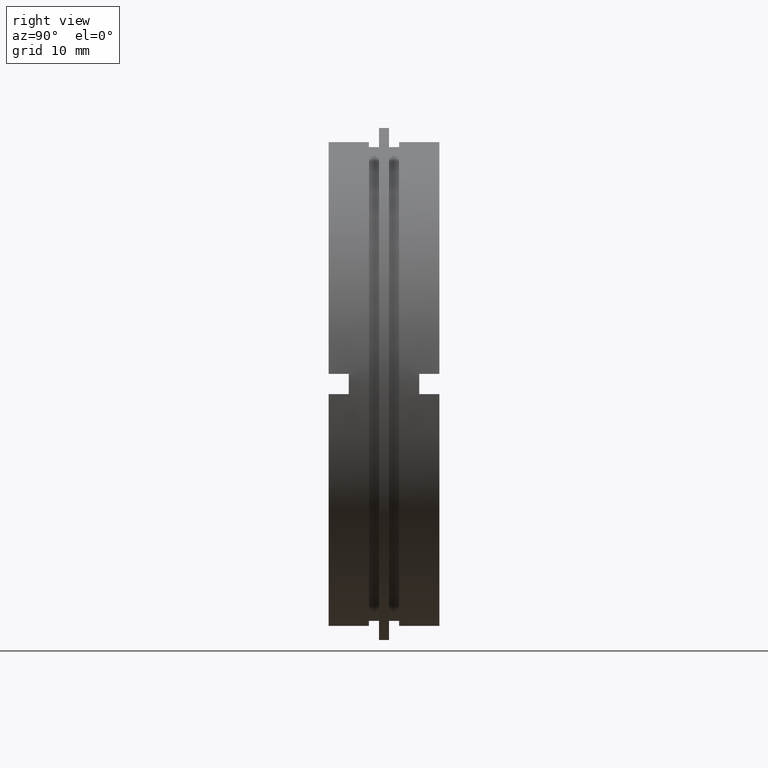
[diagram: clean part render]
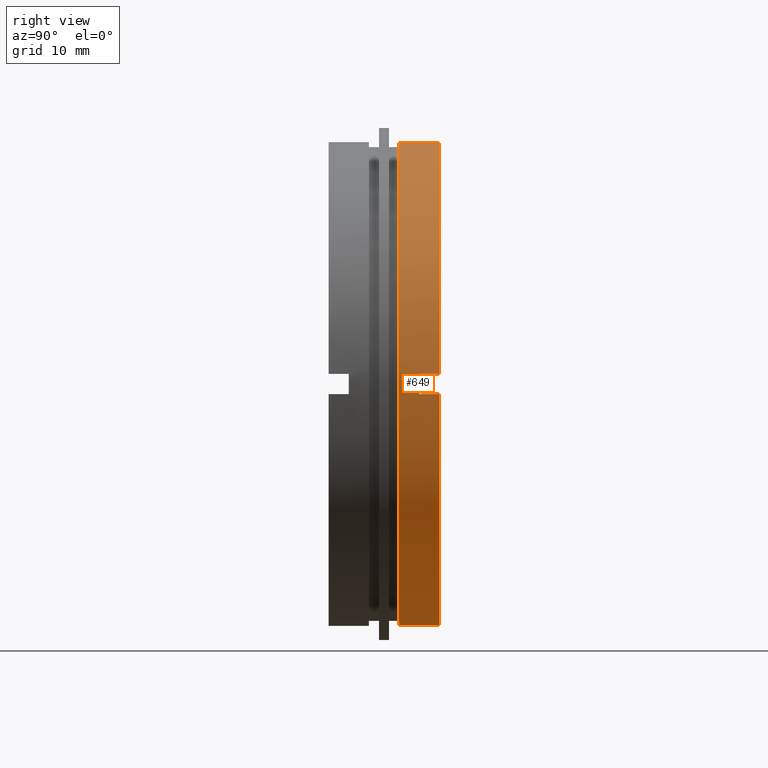
[diagram: same view with one face highlighted and labeled with its STEP entity id]
A machine part, right view. The second image highlights one B-rep face of the part: STEP entity #649.
In plain terms, the highlighted cylindrical surface (partial cylindrical patch) has radius 24 mm, axis along (-0, 1, -0).
Its self-contained STEP definition (entity closure, byte-faithful):
#2 = DIRECTION ( 'NONE',  ( 0.0000000000000000000, 0.0000000000000000000, 1.000000000000000000 ) ) ;
#14 = CIRCLE ( 'NONE', #585, 24.00000000000000000 ) ;
#27 = DIRECTION ( 'NONE',  ( 0.0000000000000000000, 0.0000000000000000000, 1.000000000000000000 ) ) ;
#39 = CARTESIAN_POINT ( 'NONE',  ( 23.97915761656359700, 9.000000000000000000, -0.9999999999999974500 ) ) ;
#67 = ORIENTED_EDGE ( 'NONE', *, *, #93, .F. ) ;
#84 = CARTESIAN_POINT ( 'NONE',  ( 0.0000000000000000000, 9.000000000000000000, 0.0000000000000000000 ) ) ;
#86 = CARTESIAN_POINT ( 'NONE',  ( 0.0000000000000000000, 11.00000000000000000, 24.00000000000000000 ) ) ;
#88 = EDGE_CURVE ( 'NONE', #1109, #1034, #431, .T. ) ;
#93 = EDGE_CURVE ( 'NONE', #647, #306, #1138, .T. ) ;
#94 = CARTESIAN_POINT ( 'NONE',  ( 2.939152317953647900E-015, 11.00000000000000000, -24.00000000000000000 ) ) ;
#107 = AXIS2_PLACEMENT_3D ( 'NONE', #1062, #530, #2 ) ;
#117 = DIRECTION ( 'NONE',  ( -0.0000000000000000000, 1.000000000000000000, -0.0000000000000000000 ) ) ;
#130 = CARTESIAN_POINT ( 'NONE',  ( 0.0000000000000000000, 22.67749945107591400, 24.00000000000000000 ) ) ;
#149 = AXIS2_PLACEMENT_3D ( 'NONE', #378, #1088, #27 ) ;
#196 = VECTOR ( 'NONE', #388, 1000.000000000000000 ) ;
#207 = VECTOR ( 'NONE', #849, 1000.000000000000000 ) ;
#208 = DIRECTION ( 'NONE',  ( -0.0000000000000000000, 1.000000000000000000, -0.0000000000000000000 ) ) ;
#216 = CARTESIAN_POINT ( 'NONE',  ( 2.939152317953647900E-015, 22.67749945107591400, -24.00000000000000000 ) ) ;
#229 = ORIENTED_EDGE ( 'NONE', *, *, #1120, .F. ) ;
#231 = CARTESIAN_POINT ( 'NONE',  ( 2.939152317953647900E-015, 6.999999999999999100, -24.00000000000000000 ) ) ;
#250 = ORIENTED_EDGE ( 'NONE', *, *, #708, .F. ) ;
#263 = DIRECTION ( 'NONE',  ( 0.0000000000000000000, 1.000000000000000000, 0.0000000000000000000 ) ) ;
#277 = FACE_OUTER_BOUND ( 'NONE', #784, .T. ) ;
#306 = VERTEX_POINT ( 'NONE', #86 ) ;
#323 = DIRECTION ( 'NONE',  ( 0.0000000000000000000, 0.0000000000000000000, 1.000000000000000000 ) ) ;
#338 = EDGE_CURVE ( 'NONE', #306, #501, #611, .T. ) ;
#342 = ORIENTED_EDGE ( 'NONE', *, *, #464, .T. ) ;
#378 = CARTESIAN_POINT ( 'NONE',  ( 0.0000000000000000000, 11.00000000000000000, 0.0000000000000000000 ) ) ;
#387 = CARTESIAN_POINT ( 'NONE',  ( 0.0000000000000000000, 6.999999999999999100, 24.00000000000000000 ) ) ;
#388 = DIRECTION ( 'NONE',  ( -0.0000000000000000000, 1.000000000000000000, -0.0000000000000000000 ) ) ;
#424 = ORIENTED_EDGE ( 'NONE', *, *, #88, .T. ) ;
#431 = LINE ( 'NONE', #216, #196 ) ;
#435 = CARTESIAN_POINT ( 'NONE',  ( 23.97915761656359700, 9.000000000000000000, 1.000000000000001100 ) ) ;
#464 = EDGE_CURVE ( 'NONE', #647, #1109, #950, .T. ) ;
#470 = LINE ( 'NONE', #475, #207 ) ;
#475 = CARTESIAN_POINT ( 'NONE',  ( 23.97915761656359700, 22.67749945107591400, -1.000000000000000000 ) ) ;
#501 = VERTEX_POINT ( 'NONE', #575 ) ;
#523 = AXIS2_PLACEMENT_3D ( 'NONE', #737, #208, #830 ) ;
#530 = DIRECTION ( 'NONE',  ( -0.0000000000000000000, 1.000000000000000000, -0.0000000000000000000 ) ) ;
#575 = CARTESIAN_POINT ( 'NONE',  ( 23.97915761656359700, 11.00000000000000000, 1.000000000000003100 ) ) ;
#585 = AXIS2_PLACEMENT_3D ( 'NONE', #84, #263, #949 ) ;
#590 = ORIENTED_EDGE ( 'NONE', *, *, #338, .F. ) ;
#602 = CARTESIAN_POINT ( 'NONE',  ( 23.97915761656359700, 11.00000000000000000, -1.000000000000000000 ) ) ;
#611 = CIRCLE ( 'NONE', #107, 24.00000000000000000 ) ;
#623 = AXIS2_PLACEMENT_3D ( 'NONE', #1092, #117, #323 ) ;
#624 = EDGE_CURVE ( 'NONE', #888, #1034, #779, .T. ) ;
#647 = VERTEX_POINT ( 'NONE', #387 ) ;
#649 = ADVANCED_FACE ( 'NONE', ( #277 ), #1106, .T. ) ;
#668 = VECTOR ( 'NONE', #1098, 1000.000000000000000 ) ;
#708 = EDGE_CURVE ( 'NONE', #501, #998, #1028, .T. ) ;
#737 = CARTESIAN_POINT ( 'NONE',  ( 0.0000000000000000000, 6.999999999999999100, 0.0000000000000000000 ) ) ;
#764 = VECTOR ( 'NONE', #1037, 1000.000000000000000 ) ;
#779 = CIRCLE ( 'NONE', #149, 24.00000000000000000 ) ;
#784 = EDGE_LOOP ( 'NONE', ( #342, #424, #1148, #229, #1063, #250, #590, #67 ) ) ;
#830 = DIRECTION ( 'NONE',  ( 0.0000000000000000000, 0.0000000000000000000, 1.000000000000000000 ) ) ;
#849 = DIRECTION ( 'NONE',  ( -0.0000000000000000000, 1.000000000000000000, -0.0000000000000000000 ) ) ;
#888 = VERTEX_POINT ( 'NONE', #602 ) ;
#949 = DIRECTION ( 'NONE',  ( 1.243449787580175300E-014, 0.0000000000000000000, -1.000000000000000000 ) ) ;
#950 = CIRCLE ( 'NONE', #523, 24.00000000000000000 ) ;
#998 = VERTEX_POINT ( 'NONE', #435 ) ;
#1005 = EDGE_CURVE ( 'NONE', #998, #1111, #14, .T. ) ;
#1024 = CARTESIAN_POINT ( 'NONE',  ( 23.97915761656359700, 22.67749945107591400, 1.000000000000003100 ) ) ;
#1028 = LINE ( 'NONE', #1024, #764 ) ;
#1034 = VERTEX_POINT ( 'NONE', #94 ) ;
#1037 = DIRECTION ( 'NONE',  ( 0.0000000000000000000, -1.000000000000000000, 0.0000000000000000000 ) ) ;
#1062 = CARTESIAN_POINT ( 'NONE',  ( 0.0000000000000000000, 11.00000000000000000, 0.0000000000000000000 ) ) ;
#1063 = ORIENTED_EDGE ( 'NONE', *, *, #1005, .F. ) ;
#1088 = DIRECTION ( 'NONE',  ( -0.0000000000000000000, 1.000000000000000000, -0.0000000000000000000 ) ) ;
#1092 = CARTESIAN_POINT ( 'NONE',  ( 0.0000000000000000000, 22.67749945107591400, 0.0000000000000000000 ) ) ;
#1098 = DIRECTION ( 'NONE',  ( -0.0000000000000000000, 1.000000000000000000, -0.0000000000000000000 ) ) ;
#1106 = CYLINDRICAL_SURFACE ( 'NONE', #623, 24.00000000000000000 ) ;
#1109 = VERTEX_POINT ( 'NONE', #231 ) ;
#1111 = VERTEX_POINT ( 'NONE', #39 ) ;
#1120 = EDGE_CURVE ( 'NONE', #1111, #888, #470, .T. ) ;
#1138 = LINE ( 'NONE', #130, #668 ) ;
#1148 = ORIENTED_EDGE ( 'NONE', *, *, #624, .F. ) ;